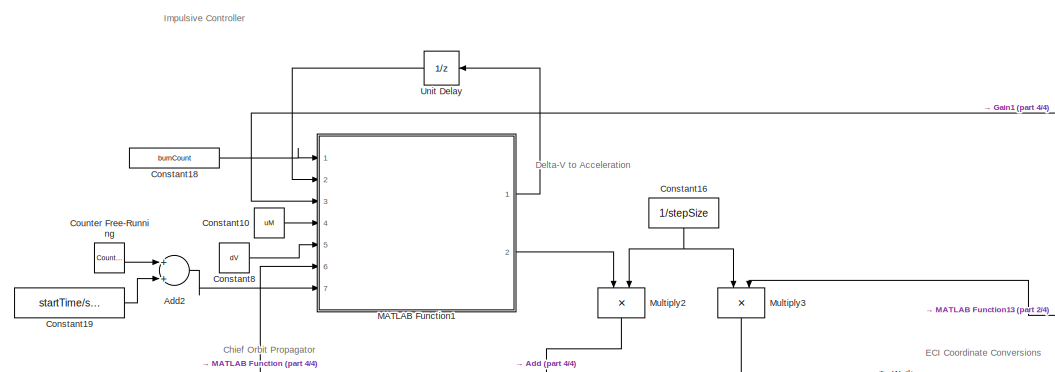
[diagram: root canvas - part 1/4, top left region]
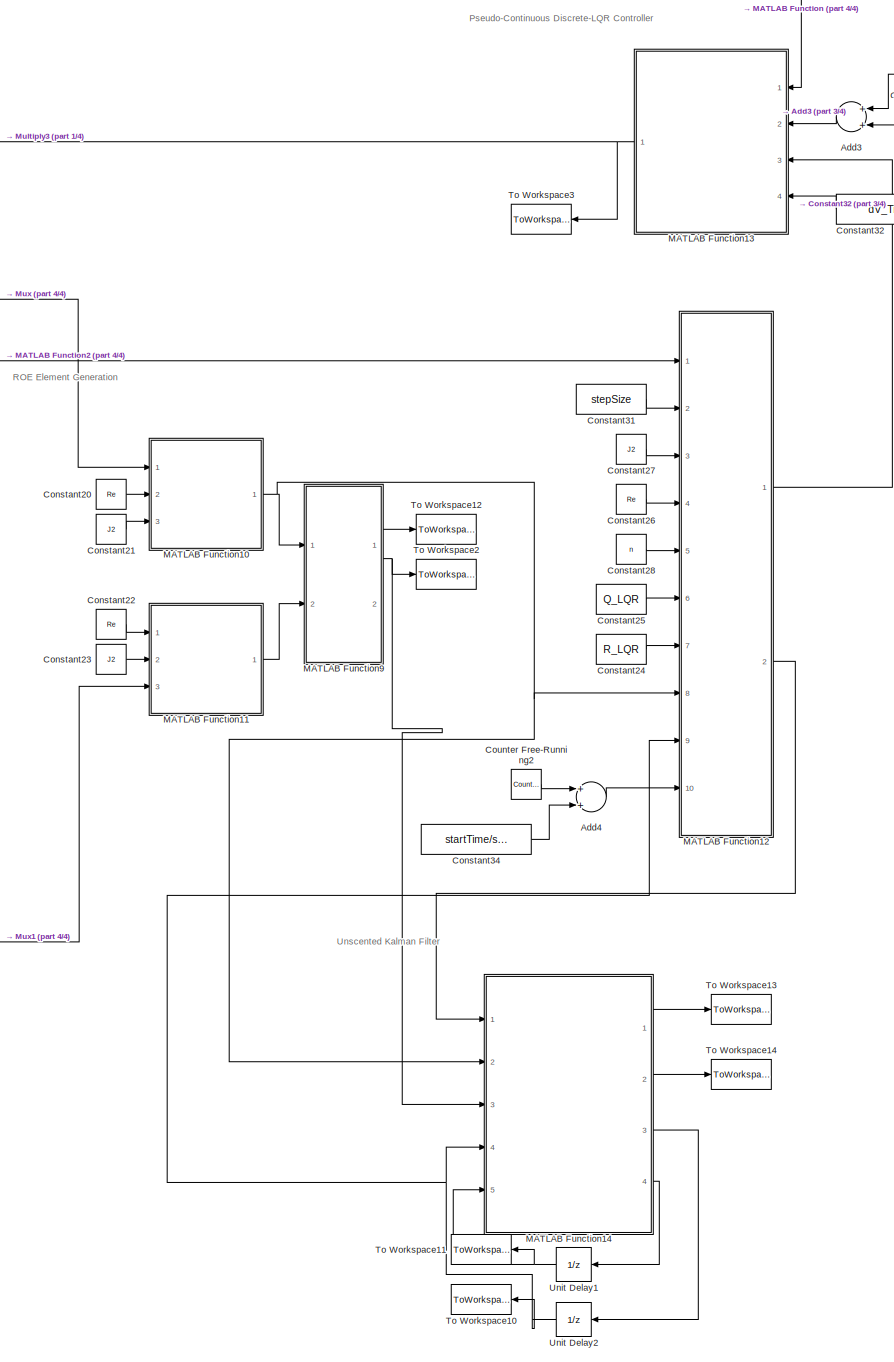
[diagram: root canvas - part 2/4, right side, full height]
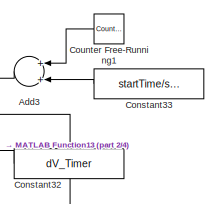
[diagram: root canvas - part 3/4, top right region]
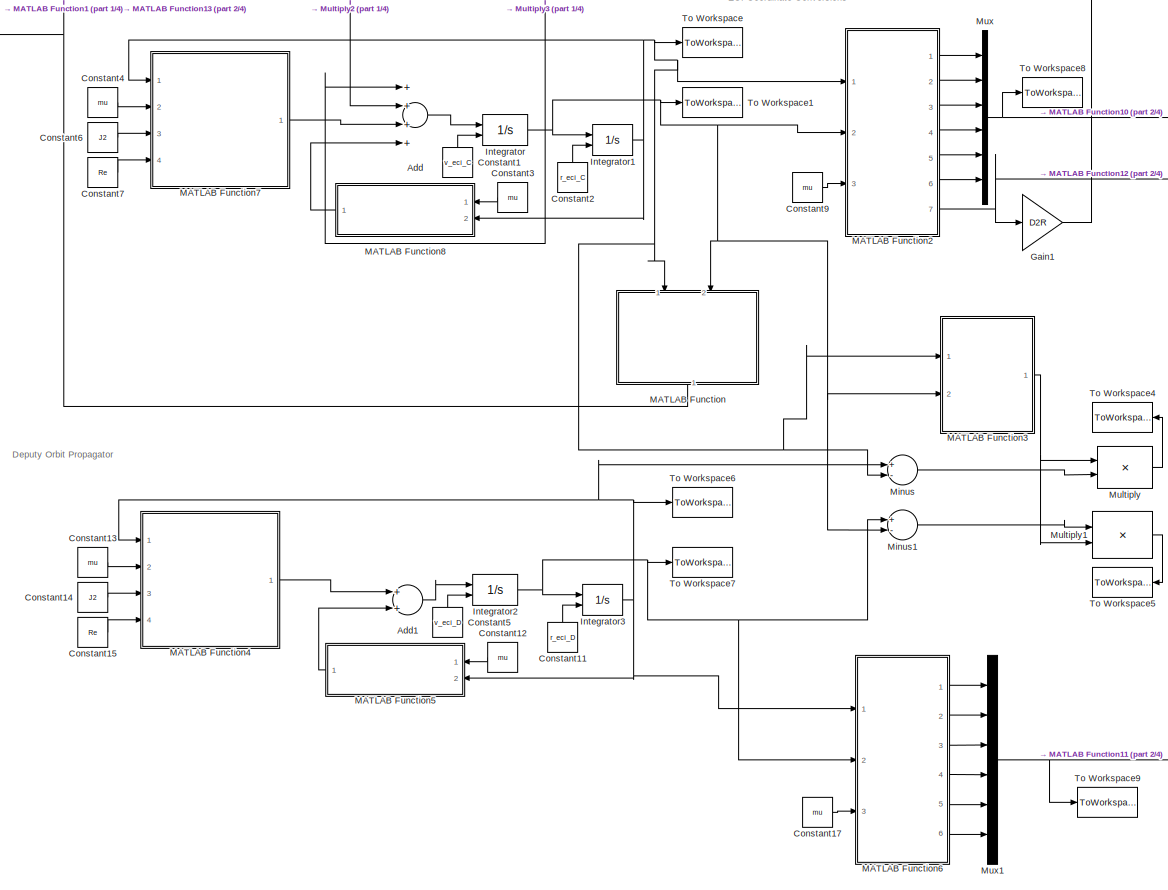
[diagram: root canvas - part 4/4, central region]
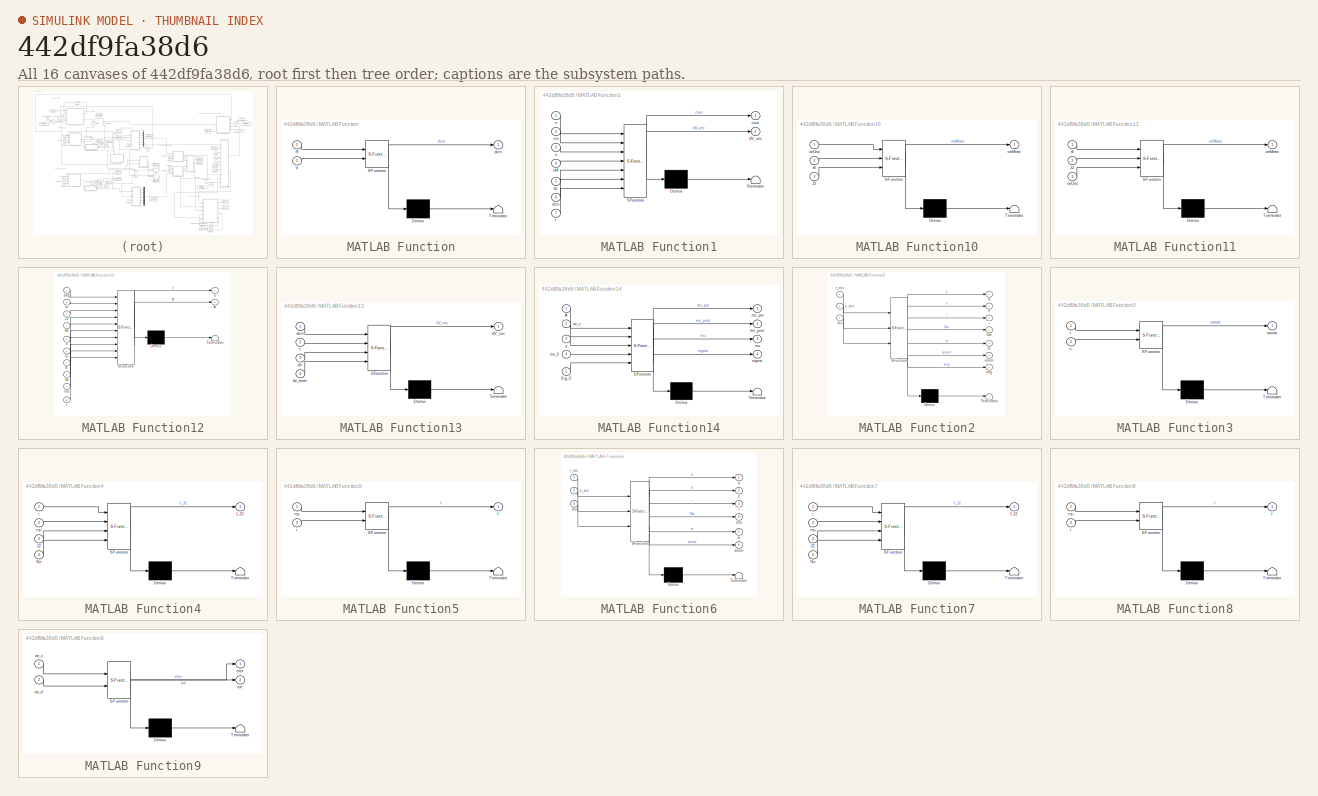
[diagram: thumbnail index - all 16 canvases of the model, root first then tree order]
MODEL slx_442df9fa38d6
KIND model
CONFIG AbsTol = auto
CONFIG EnableMultiTasking = off
CONFIG FixedStep = stepSize
CONFIG MaxStep = auto
CONFIG MinStep = auto
CONFIG RelTol = 1e-3
CONFIG SampleTimeConstraint = Unconstrained
CONFIG Solver = FixedStepAuto
CONFIG SolverName = FixedStepAuto
CONFIG StartTime = startTime
CONFIG StopTime = stopTime
BLOCK [Sum] Add
  InputSameDT = off
  Inputs = ++++
  OutDataTypeStr = Inherit: Inherit via internal rule
  Ports = [4, 1]
  SaturateOnIntegerOverflow = off
BLOCK [Sum] Add1
  InputSameDT = off
  OutDataTypeStr = Inherit: Inherit via internal rule
  Ports = [2, 1]
  SaturateOnIntegerOverflow = off
BLOCK [Sum] Add2
  InputSameDT = off
  OutDataTypeStr = Inherit: Inherit via internal rule
  Ports = [2, 1]
  SaturateOnIntegerOverflow = off
BLOCK [Sum] Add3
  InputSameDT = off
  OutDataTypeStr = Inherit: Inherit via internal rule
  Ports = [2, 1]
  SaturateOnIntegerOverflow = off
BLOCK [Sum] Add4
  InputSameDT = off
  OutDataTypeStr = Inherit: Inherit via internal rule
  Ports = [2, 1]
  SaturateOnIntegerOverflow = off
BLOCK [Constant] Constant1
  Value = v_eci_C
BLOCK [Constant] Constant10
  Value = uM
BLOCK [Constant] Constant11
  Value = r_eci_D
BLOCK [Constant] Constant12
  Value = mu
BLOCK [Constant] Constant13
  Value = mu
BLOCK [Constant] Constant14
  Value = J2
BLOCK [Constant] Constant15
  Value = Re
BLOCK [Constant] Constant16
  Value = 1/stepSize
BLOCK [Constant] Constant17
  Value = mu
BLOCK [Constant] Constant18
  Value = burnCount
BLOCK [Constant] Constant19
  Value = startTime/stepSize
BLOCK [Constant] Constant2
  Value = r_eci_C
BLOCK [Constant] Constant20
  Value = Re
BLOCK [Constant] Constant21
  Value = J2
BLOCK [Constant] Constant22
  Value = Re
BLOCK [Constant] Constant23
  Value = J2
BLOCK [Constant] Constant24
  Value = R_LQR
BLOCK [Constant] Constant25
  Value = Q_LQR
BLOCK [Constant] Constant26
  Value = Re
BLOCK [Constant] Constant27
  Value = J2
BLOCK [Constant] Constant28
  Value = n
BLOCK [Constant] Constant3
  Value = mu
BLOCK [Constant] Constant31
  Value = stepSize
BLOCK [Constant] Constant32
  Value = dV_Timer
BLOCK [Constant] Constant33
  Value = startTime/stepSize
BLOCK [Constant] Constant34
  Value = startTime/stepSize
BLOCK [Constant] Constant4
  Value = mu
BLOCK [Constant] Constant5
  Value = v_eci_D
BLOCK [Constant] Constant6
  Value = J2
BLOCK [Constant] Constant7
  Value = Re
BLOCK [Constant] Constant8
  Value = dV
BLOCK [Constant] Constant9
  Value = mu
BLOCK [Reference] Counter Free-Running  REF=simulink/Sources/Counter
Free-Running
  Ports = [0, 1]
  SourceBlock = simulink/Sources/Counter\nFree-Running
  SourceProductBaseCode = SL
  SourceProductName = Simulink
  SourceType = Counter Free-Running
BLOCK [Reference] Counter Free-Running1  REF=simulink/Sources/Counter
Free-Running
  Ports = [0, 1]
  SourceBlock = simulink/Sources/Counter\nFree-Running
  SourceProductBaseCode = SL
  SourceProductName = Simulink
  SourceType = Counter Free-Running
BLOCK [Reference] Counter Free-Running2  REF=simulink/Sources/Counter
Free-Running
  Ports = [0, 1]
  SourceBlock = simulink/Sources/Counter\nFree-Running
  SourceProductBaseCode = SL
  SourceProductName = Simulink
  SourceType = Counter Free-Running
BLOCK [Gain] Gain1
  Gain = D2R
  OutDataTypeStr = Inherit: Inherit via internal rule
  ParamDataTypeStr = Inherit: Inherit via internal rule
  SaturateOnIntegerOverflow = off
BLOCK [Integrator] Integrator
  InitialConditionSource = external
  Ports = [2, 1]
BLOCK [Integrator] Integrator1
  InitialConditionSource = external
  Ports = [2, 1]
BLOCK [Integrator] Integrator2
  InitialConditionSource = external
  Ports = [2, 1]
BLOCK [Integrator] Integrator3
  InitialConditionSource = external
  Ports = [2, 1]
BLOCK [SubSystem] MATLAB Function
  ErrorFcn = Stateflow.Translate.translate
  PermitHierarchicalResolution = ExplicitOnly
  Ports = [2, 1]
  RequestExecContextInheritance = off
  SFBlockType = MATLAB Function
  TreatAsAtomicUnit = on
BLOCK [Demux] MATLAB Function/ Demux 
  Outputs = 1
  Ports = [1, 1]
BLOCK [S-Function] MATLAB Function/ SFunction 
  EnableBusSupport = on
  FunctionName = sf_sfun
  PortCounts = [2 2]
  Ports = [2, 2]
  SFcnIsStateOwnerBlock = off
  SFunctionDeploymentMode = off
  Tag = Stateflow S-Function FINAL_MODEL 3
BLOCK [Terminator] MATLAB Function/ Terminator 
BLOCK [Inport] MATLAB Function/R
  IconDisplay = Port number
BLOCK [Inport] MATLAB Function/V
  IconDisplay = Port number
  Port = 2
BLOCK [Outport] MATLAB Function/dcm
  IconDisplay = Port number
BLOCK [SubSystem] MATLAB Function1
  ErrorFcn = Stateflow.Translate.translate
  PermitHierarchicalResolution = ExplicitOnly
  Ports = [7, 2]
  RequestExecContextInheritance = off
  SFBlockType = MATLAB Function
  TreatAsAtomicUnit = on
BLOCK [Demux] MATLAB Function1/ Demux 
  Outputs = 1
  Ports = [1, 1]
BLOCK [S-Function] MATLAB Function1/ SFunction 
  EnableBusSupport = on
  FunctionName = sf_sfun
  PortCounts = [7 3]
  Ports = [7, 3]
  SFcnIsStateOwnerBlock = off
  SFunctionDeploymentMode = off
  Tag = Stateflow S-Function FINAL_MODEL 1
BLOCK [Terminator] MATLAB Function1/ Terminator 
BLOCK [Inport] MATLAB Function1/cin
  IconDisplay = Port number
  Port = 2
BLOCK [Outport] MATLAB Function1/cout
  IconDisplay = Port number
BLOCK [Outport] MATLAB Function1/dV_vec
  IconDisplay = Port number
  Port = 2
BLOCK [Inport] MATLAB Function1/dcm
  IconDisplay = Port number
  Port = 6
BLOCK [Inport] MATLAB Function1/dv
  IconDisplay = Port number
  Port = 5
BLOCK [Inport] MATLAB Function1/n
  IconDisplay = Port number
BLOCK [Inport] MATLAB Function1/t
  IconDisplay = Port number
  Port = 7
BLOCK [Inport] MATLAB Function1/u
  IconDisplay = Port number
  Port = 3
BLOCK [Inport] MATLAB Function1/uM
  IconDisplay = Port number
  Port = 4
BLOCK [SubSystem] MATLAB Function10
  ErrorFcn = Stateflow.Translate.translate
  PermitHierarchicalResolution = ExplicitOnly
  Ports = [3, 1]
  RequestExecContextInheritance = off
  SFBlockType = MATLAB Function
  TreatAsAtomicUnit = on
BLOCK [Demux] MATLAB Function10/ Demux 
  Outputs = 1
  Ports = [1, 1]
BLOCK [S-Function] MATLAB Function10/ SFunction 
  EnableBusSupport = on
  FunctionName = sf_sfun
  PortCounts = [3 2]
  Ports = [3, 2]
  SFcnIsStateOwnerBlock = off
  SFunctionDeploymentMode = off
  Tag = Stateflow S-Function FINAL_MODEL 11
BLOCK [Terminator] MATLAB Function10/ Terminator 
BLOCK [Inport] MATLAB Function10/J2
  IconDisplay = Port number
  Port = 3
BLOCK [Outport] MATLAB Function10/oeMean
  IconDisplay = Port number
BLOCK [Inport] MATLAB Function10/oeOsc
  IconDisplay = Port number
BLOCK [Inport] MATLAB Function10/rE
  IconDisplay = Port number
  Port = 2
BLOCK [SubSystem] MATLAB Function11
  ErrorFcn = Stateflow.Translate.translate
  PermitHierarchicalResolution = ExplicitOnly
  Ports = [3, 1]
  RequestExecContextInheritance = off
  SFBlockType = MATLAB Function
  TreatAsAtomicUnit = on
BLOCK [Demux] MATLAB Function11/ Demux 
  Outputs = 1
  Ports = [1, 1]
BLOCK [S-Function] MATLAB Function11/ SFunction 
  EnableBusSupport = on
  FunctionName = sf_sfun
  PortCounts = [3 2]
  Ports = [3, 2]
  SFcnIsStateOwnerBlock = off
  SFunctionDeploymentMode = off
  Tag = Stateflow S-Function FINAL_MODEL 12
BLOCK [Terminator] MATLAB Function11/ Terminator 
BLOCK [Inport] MATLAB Function11/J2
  IconDisplay = Port number
  Port = 2
BLOCK [Outport] MATLAB Function11/oeMean
  IconDisplay = Port number
BLOCK [Inport] MATLAB Function11/oeOsc
  IconDisplay = Port number
  Port = 3
BLOCK [Inport] MATLAB Function11/rE
  IconDisplay = Port number
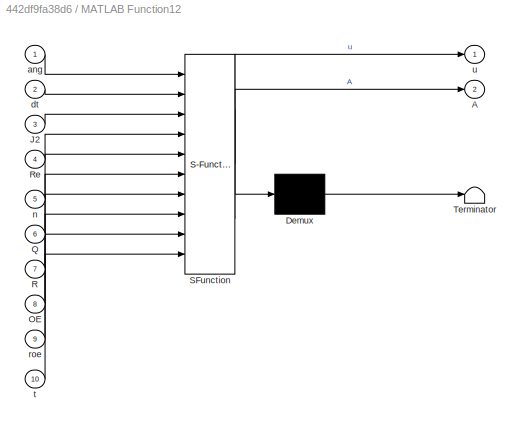
BLOCK [SubSystem] MATLAB Function12
  ErrorFcn = Stateflow.Translate.translate
  PermitHierarchicalResolution = ExplicitOnly
  Ports = [10, 2]
  RequestExecContextInheritance = off
  SFBlockType = MATLAB Function
  TreatAsAtomicUnit = on
BLOCK [Demux] MATLAB Function12/ Demux 
  Outputs = 1
  Ports = [1, 1]
BLOCK [S-Function] MATLAB Function12/ SFunction 
  EnableBusSupport = on
  FunctionName = sf_sfun
  PortCounts = [10 3]
  Ports = [10, 3]
  SFcnIsStateOwnerBlock = off
  SFunctionDeploymentMode = off
  Tag = Stateflow S-Function FINAL_MODEL 13
BLOCK [Terminator] MATLAB Function12/ Terminator 
BLOCK [Outport] MATLAB Function12/A
  IconDisplay = Port number
  Port = 2
BLOCK [Inport] MATLAB Function12/J2
  IconDisplay = Port number
  Port = 3
BLOCK [Inport] MATLAB Function12/OE
  IconDisplay = Port number
  Port = 8
BLOCK [Inport] MATLAB Function12/Q
  IconDisplay = Port number
  Port = 6
BLOCK [Inport] MATLAB Function12/R
  IconDisplay = Port number
  Port = 7
BLOCK [Inport] MATLAB Function12/Re
  IconDisplay = Port number
  Port = 4
BLOCK [Inport] MATLAB Function12/ang
  IconDisplay = Port number
BLOCK [Inport] MATLAB Function12/dt
  IconDisplay = Port number
  Port = 2
BLOCK [Inport] MATLAB Function12/n
  IconDisplay = Port number
  Port = 5
BLOCK [Inport] MATLAB Function12/roe
  IconDisplay = Port number
  Port = 9
BLOCK [Inport] MATLAB Function12/t
  IconDisplay = Port number
  Port = 10
BLOCK [Outport] MATLAB Function12/u
  IconDisplay = Port number
BLOCK [SubSystem] MATLAB Function13
  ErrorFcn = Stateflow.Translate.translate
  PermitHierarchicalResolution = ExplicitOnly
  Ports = [4, 1]
  RequestExecContextInheritance = off
  SFBlockType = MATLAB Function
  TreatAsAtomicUnit = on
BLOCK [Demux] MATLAB Function13/ Demux 
  Outputs = 1
  Ports = [1, 1]
BLOCK [S-Function] MATLAB Function13/ SFunction 
  EnableBusSupport = on
  FunctionName = sf_sfun
  PortCounts = [4 2]
  Ports = [4, 2]
  SFcnIsStateOwnerBlock = off
  SFunctionDeploymentMode = off
  Tag = Stateflow S-Function FINAL_MODEL 14
BLOCK [Terminator] MATLAB Function13/ Terminator 
BLOCK [Outport] MATLAB Function13/dV_vec
  IconDisplay = Port number
BLOCK [Inport] MATLAB Function13/dcm
  IconDisplay = Port number
BLOCK [Inport] MATLAB Function13/dv
  IconDisplay = Port number
  Port = 3
BLOCK [Inport] MATLAB Function13/dv_timer
  IconDisplay = Port number
  Port = 4
BLOCK [Inport] MATLAB Function13/t
  IconDisplay = Port number
  Port = 2
BLOCK [SubSystem] MATLAB Function14
  ErrorFcn = Stateflow.Translate.translate
  PermitHierarchicalResolution = ExplicitOnly
  Ports = [5, 4]
  RequestExecContextInheritance = off
  SFBlockType = MATLAB Function
  TreatAsAtomicUnit = on
BLOCK [Demux] MATLAB Function14/ Demux 
  Outputs = 1
  Ports = [1, 1]
BLOCK [S-Function] MATLAB Function14/ SFunction 
  EnableBusSupport = on
  FunctionName = sf_sfun
  PortCounts = [5 5]
  Ports = [5, 5]
  SFcnIsStateOwnerBlock = off
  SFunctionDeploymentMode = off
  Tag = Stateflow S-Function FINAL_MODEL 15
BLOCK [Terminator] MATLAB Function14/ Terminator 
BLOCK [Inport] MATLAB Function14/A
  IconDisplay = Port number
BLOCK [Inport] MATLAB Function14/Sig_0
  IconDisplay = Port number
  Port = 5
BLOCK [Outport] MATLAB Function14/mu
  IconDisplay = Port number
  Port = 3
BLOCK [Inport] MATLAB Function14/mu_0
  IconDisplay = Port number
  Port = 4
BLOCK [Inport] MATLAB Function14/oe_c
  IconDisplay = Port number
  Port = 2
BLOCK [Outport] MATLAB Function14/res_post
  IconDisplay = Port number
  Port = 2
BLOCK [Outport] MATLAB Function14/res_pre
  IconDisplay = Port number
BLOCK [Outport] MATLAB Function14/sigma
  IconDisplay = Port number
  Port = 4
BLOCK [Inport] MATLAB Function14/y
  IconDisplay = Port number
  Port = 3
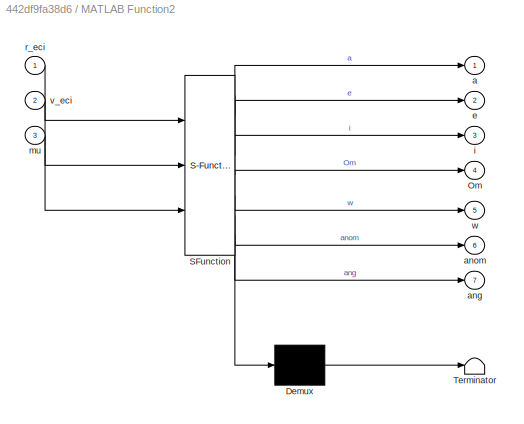
BLOCK [SubSystem] MATLAB Function2
  ErrorFcn = Stateflow.Translate.translate
  PermitHierarchicalResolution = ExplicitOnly
  Ports = [3, 7]
  RequestExecContextInheritance = off
  SFBlockType = MATLAB Function
  TreatAsAtomicUnit = on
BLOCK [Demux] MATLAB Function2/ Demux 
  Outputs = 1
  Ports = [1, 1]
BLOCK [S-Function] MATLAB Function2/ SFunction 
  EnableBusSupport = on
  FunctionName = sf_sfun
  PortCounts = [3 8]
  Ports = [3, 8]
  SFcnIsStateOwnerBlock = off
  SFunctionDeploymentMode = off
  Tag = Stateflow S-Function FINAL_MODEL 2
BLOCK [Terminator] MATLAB Function2/ Terminator 
BLOCK [Outport] MATLAB Function2/Om
  IconDisplay = Port number
  Port = 4
BLOCK [Outport] MATLAB Function2/a
  IconDisplay = Port number
BLOCK [Outport] MATLAB Function2/ang
  IconDisplay = Port number
  Port = 7
BLOCK [Outport] MATLAB Function2/anom
  IconDisplay = Port number
  Port = 6
BLOCK [Outport] MATLAB Function2/e
  IconDisplay = Port number
  Port = 2
BLOCK [Outport] MATLAB Function2/i
  IconDisplay = Port number
  Port = 3
BLOCK [Inport] MATLAB Function2/mu
  IconDisplay = Port number
  Port = 3
BLOCK [Inport] MATLAB Function2/r_eci
  IconDisplay = Port number
BLOCK [Inport] MATLAB Function2/v_eci
  IconDisplay = Port number
  Port = 2
BLOCK [Outport] MATLAB Function2/w
  IconDisplay = Port number
  Port = 5
BLOCK [SubSystem] MATLAB Function3
  ErrorFcn = Stateflow.Translate.translate
  PermitHierarchicalResolution = ExplicitOnly
  Ports = [2, 1]
  RequestExecContextInheritance = off
  SFBlockType = MATLAB Function
  TreatAsAtomicUnit = on
BLOCK [Demux] MATLAB Function3/ Demux 
  Outputs = 1
  Ports = [1, 1]
BLOCK [S-Function] MATLAB Function3/ SFunction 
  EnableBusSupport = on
  FunctionName = sf_sfun
  PortCounts = [2 2]
  Ports = [2, 2]
  SFcnIsStateOwnerBlock = off
  SFunctionDeploymentMode = off
  Tag = Stateflow S-Function FINAL_MODEL 6
BLOCK [Terminator] MATLAB Function3/ Terminator 
BLOCK [Inport] MATLAB Function3/r
  IconDisplay = Port number
BLOCK [Outport] MATLAB Function3/rotmat
  IconDisplay = Port number
BLOCK [Inport] MATLAB Function3/v
  IconDisplay = Port number
  Port = 2
BLOCK [SubSystem] MATLAB Function4
  ErrorFcn = Stateflow.Translate.translate
  PermitHierarchicalResolution = ExplicitOnly
  Ports = [4, 1]
  RequestExecContextInheritance = off
  SFBlockType = MATLAB Function
  TreatAsAtomicUnit = on
BLOCK [Demux] MATLAB Function4/ Demux 
  Outputs = 1
  Ports = [1, 1]
BLOCK [S-Function] MATLAB Function4/ SFunction 
  EnableBusSupport = on
  FunctionName = sf_sfun
  PortCounts = [4 2]
  Ports = [4, 2]
  SFcnIsStateOwnerBlock = off
  SFunctionDeploymentMode = off
  Tag = Stateflow S-Function FINAL_MODEL 7
BLOCK [Terminator] MATLAB Function4/ Terminator 
BLOCK [Inport] MATLAB Function4/J2
  IconDisplay = Port number
  Port = 3
BLOCK [Inport] MATLAB Function4/Re
  IconDisplay = Port number
  Port = 4
BLOCK [Outport] MATLAB Function4/f_J2
  IconDisplay = Port number
BLOCK [Inport] MATLAB Function4/mu
  IconDisplay = Port number
  Port = 2
BLOCK [Inport] MATLAB Function4/r
  IconDisplay = Port number
BLOCK [SubSystem] MATLAB Function5
  ErrorFcn = Stateflow.Translate.translate
  PermitHierarchicalResolution = ExplicitOnly
  Ports = [2, 1]
  RequestExecContextInheritance = off
  SFBlockType = MATLAB Function
  TreatAsAtomicUnit = on
BLOCK [Demux] MATLAB Function5/ Demux 
  Outputs = 1
  Ports = [1, 1]
BLOCK [S-Function] MATLAB Function5/ SFunction 
  EnableBusSupport = on
  FunctionName = sf_sfun
  PortCounts = [2 2]
  Ports = [2, 2]
  SFcnIsStateOwnerBlock = off
  SFunctionDeploymentMode = off
  Tag = Stateflow S-Function FINAL_MODEL 8
BLOCK [Terminator] MATLAB Function5/ Terminator 
BLOCK [Outport] MATLAB Function5/f
  IconDisplay = Port number
BLOCK [Inport] MATLAB Function5/mu
  IconDisplay = Port number
BLOCK [Inport] MATLAB Function5/r
  IconDisplay = Port number
  Port = 2
BLOCK [SubSystem] MATLAB Function6
  ErrorFcn = Stateflow.Translate.translate
  PermitHierarchicalResolution = ExplicitOnly
  Ports = [3, 6]
  RequestExecContextInheritance = off
  SFBlockType = MATLAB Function
  TreatAsAtomicUnit = on
BLOCK [Demux] MATLAB Function6/ Demux 
  Outputs = 1
  Ports = [1, 1]
BLOCK [S-Function] MATLAB Function6/ SFunction 
  EnableBusSupport = on
  FunctionName = sf_sfun
  PortCounts = [3 7]
  Ports = [3, 7]
  SFcnIsStateOwnerBlock = off
  SFunctionDeploymentMode = off
  Tag = Stateflow S-Function FINAL_MODEL 9
BLOCK [Terminator] MATLAB Function6/ Terminator 
BLOCK [Outport] MATLAB Function6/Om
  IconDisplay = Port number
  Port = 4
BLOCK [Outport] MATLAB Function6/a
  IconDisplay = Port number
BLOCK [Outport] MATLAB Function6/anom
  IconDisplay = Port number
  Port = 6
BLOCK [Outport] MATLAB Function6/e
  IconDisplay = Port number
  Port = 2
BLOCK [Outport] MATLAB Function6/i
  IconDisplay = Port number
  Port = 3
BLOCK [Inport] MATLAB Function6/mu
  IconDisplay = Port number
  Port = 3
BLOCK [Inport] MATLAB Function6/r_eci
  IconDisplay = Port number
BLOCK [Inport] MATLAB Function6/v_eci
  IconDisplay = Port number
  Port = 2
BLOCK [Outport] MATLAB Function6/w
  IconDisplay = Port number
  Port = 5
BLOCK [SubSystem] MATLAB Function7
  ErrorFcn = Stateflow.Translate.translate
  PermitHierarchicalResolution = ExplicitOnly
  Ports = [4, 1]
  RequestExecContextInheritance = off
  SFBlockType = MATLAB Function
  TreatAsAtomicUnit = on
BLOCK [Demux] MATLAB Function7/ Demux 
  Outputs = 1
  Ports = [1, 1]
BLOCK [S-Function] MATLAB Function7/ SFunction 
  EnableBusSupport = on
  FunctionName = sf_sfun
  PortCounts = [4 2]
  Ports = [4, 2]
  SFcnIsStateOwnerBlock = off
  SFunctionDeploymentMode = off
  Tag = Stateflow S-Function FINAL_MODEL 4
BLOCK [Terminator] MATLAB Function7/ Terminator 
BLOCK [Inport] MATLAB Function7/J2
  IconDisplay = Port number
  Port = 3
BLOCK [Inport] MATLAB Function7/Re
  IconDisplay = Port number
  Port = 4
BLOCK [Outport] MATLAB Function7/f_J2
  IconDisplay = Port number
BLOCK [Inport] MATLAB Function7/mu
  IconDisplay = Port number
  Port = 2
BLOCK [Inport] MATLAB Function7/r
  IconDisplay = Port number
BLOCK [SubSystem] MATLAB Function8
  ErrorFcn = Stateflow.Translate.translate
  PermitHierarchicalResolution = ExplicitOnly
  Ports = [2, 1]
  RequestExecContextInheritance = off
  SFBlockType = MATLAB Function
  TreatAsAtomicUnit = on
BLOCK [Demux] MATLAB Function8/ Demux 
  Outputs = 1
  Ports = [1, 1]
BLOCK [S-Function] MATLAB Function8/ SFunction 
  EnableBusSupport = on
  FunctionName = sf_sfun
  PortCounts = [2 2]
  Ports = [2, 2]
  SFcnIsStateOwnerBlock = off
  SFunctionDeploymentMode = off
  Tag = Stateflow S-Function FINAL_MODEL 5
BLOCK [Terminator] MATLAB Function8/ Terminator 
BLOCK [Outport] MATLAB Function8/f
  IconDisplay = Port number
BLOCK [Inport] MATLAB Function8/mu
  IconDisplay = Port number
BLOCK [Inport] MATLAB Function8/r
  IconDisplay = Port number
  Port = 2
BLOCK [SubSystem] MATLAB Function9
  ErrorFcn = Stateflow.Translate.translate
  PermitHierarchicalResolution = ExplicitOnly
  Ports = [2, 2]
  RequestExecContextInheritance = off
  SFBlockType = MATLAB Function
  TreatAsAtomicUnit = on
BLOCK [Demux] MATLAB Function9/ Demux 
  Outputs = 1
  Ports = [1, 1]
BLOCK [S-Function] MATLAB Function9/ SFunction 
  EnableBusSupport = on
  FunctionName = sf_sfun
  PortCounts = [2 3]
  Ports = [2, 3]
  SFcnIsStateOwnerBlock = off
  SFunctionDeploymentMode = off
  Tag = Stateflow S-Function FINAL_MODEL 10
BLOCK [Terminator] MATLAB Function9/ Terminator 
BLOCK [Outport] MATLAB Function9/error
  IconDisplay = Port number
BLOCK [Inport] MATLAB Function9/oe_c
  IconDisplay = Port number
BLOCK [Inport] MATLAB Function9/oe_d
  IconDisplay = Port number
  Port = 2
BLOCK [Outport] MATLAB Function9/roe
  IconDisplay = Port number
  Port = 2
BLOCK [Sum] Minus
  InputSameDT = off
  Inputs = +-
  OutDataTypeStr = Inherit: Inherit via internal rule
  Ports = [2, 1]
  SaturateOnIntegerOverflow = off
BLOCK [Sum] Minus1
  InputSameDT = off
  Inputs = +-
  OutDataTypeStr = Inherit: Inherit via internal rule
  Ports = [2, 1]
  SaturateOnIntegerOverflow = off
BLOCK [Product] Multiply
  InputSameDT = off
  Multiplication = Matrix(*)
  OutDataTypeStr = Inherit: Inherit via internal rule
  Ports = [2, 1]
  RndMeth = Floor
  SaturateOnIntegerOverflow = off
BLOCK [Product] Multiply1
  InputSameDT = off
  Multiplication = Matrix(*)
  OutDataTypeStr = Inherit: Inherit via internal rule
  Ports = [2, 1]
  RndMeth = Floor
  SaturateOnIntegerOverflow = off
BLOCK [Product] Multiply2
  InputSameDT = off
  OutDataTypeStr = Inherit: Inherit via internal rule
  Ports = [2, 1]
  RndMeth = Floor
  SaturateOnIntegerOverflow = off
BLOCK [Product] Multiply3
  InputSameDT = off
  OutDataTypeStr = Inherit: Inherit via internal rule
  Ports = [2, 1]
  RndMeth = Floor
  SaturateOnIntegerOverflow = off
BLOCK [Mux] Mux
  DisplayOption = bar
  Inputs = 6
  Ports = [6, 1]
BLOCK [Mux] Mux1
  DisplayOption = bar
  Inputs = 6
  Ports = [6, 1]
BLOCK [ToWorkspace] To Workspace
  FixptAsFi = on
  MaxDataPoints = inf
  Ports = [1]
  SampleTime = -1
  Save2DSignal = 2-D array (concatenate along first dimension)
  VariableName = r
BLOCK [ToWorkspace] To Workspace1
  FixptAsFi = on
  MaxDataPoints = inf
  Ports = [1]
  SampleTime = -1
  Save2DSignal = 2-D array (concatenate along first dimension)
  VariableName = v
BLOCK [ToWorkspace] To Workspace10
  FixptAsFi = on
  MaxDataPoints = inf
  Ports = [1]
  SampleTime = -1
  Save2DSignal = 2-D array (concatenate along first dimension)
  VariableName = ukf_out
BLOCK [ToWorkspace] To Workspace11
  FixptAsFi = on
  MaxDataPoints = inf
  Ports = [1]
  SampleTime = -1
  Save2DSignal = 3-D array (concatenate along third dimension)
  VariableName = sig_out
BLOCK [ToWorkspace] To Workspace12
  FixptAsFi = on
  MaxDataPoints = inf
  Ports = [1]
  SampleTime = -1
  Save2DSignal = 2-D array (concatenate along first dimension)
  VariableName = error
BLOCK [ToWorkspace] To Workspace13
  FixptAsFi = on
  MaxDataPoints = inf
  Ports = [1]
  SampleTime = -1
  Save2DSignal = 2-D array (concatenate along first dimension)
  VariableName = res_pre
BLOCK [ToWorkspace] To Workspace14
  FixptAsFi = on
  MaxDataPoints = inf
  Ports = [1]
  SampleTime = -1
  Save2DSignal = 2-D array (concatenate along first dimension)
  VariableName = res_post
BLOCK [ToWorkspace] To Workspace2
  FixptAsFi = on
  MaxDataPoints = inf
  Ports = [1]
  SampleTime = -1
  Save2DSignal = 2-D array (concatenate along first dimension)
  VariableName = roe_out
BLOCK [ToWorkspace] To Workspace3
  FixptAsFi = on
  MaxDataPoints = inf
  Ports = [1]
  SampleTime = -1
  Save2DSignal = 2-D array (concatenate along first dimension)
  VariableName = dV_LQR
BLOCK [ToWorkspace] To Workspace4
  FixptAsFi = on
  MaxDataPoints = inf
  Ports = [1]
  SampleTime = -1
  Save2DSignal = 2-D array (concatenate along first dimension)
  VariableName = rRTN
BLOCK [ToWorkspace] To Workspace5
  FixptAsFi = on
  MaxDataPoints = inf
  Ports = [1]
  SampleTime = -1
  Save2DSignal = 2-D array (concatenate along first dimension)
  VariableName = vRTN
BLOCK [ToWorkspace] To Workspace6
  FixptAsFi = on
  MaxDataPoints = inf
  Ports = [1]
  SampleTime = -1
  Save2DSignal = 2-D array (concatenate along first dimension)
  VariableName = rd
BLOCK [ToWorkspace] To Workspace7
  FixptAsFi = on
  MaxDataPoints = inf
  Ports = [1]
  SampleTime = -1
  Save2DSignal = 2-D array (concatenate along first dimension)
  VariableName = vd
BLOCK [ToWorkspace] To Workspace8
  FixptAsFi = on
  MaxDataPoints = inf
  Ports = [1]
  SampleTime = -1
  Save2DSignal = 2-D array (concatenate along first dimension)
  VariableName = OE_C
BLOCK [ToWorkspace] To Workspace9
  FixptAsFi = on
  MaxDataPoints = inf
  Ports = [1]
  SampleTime = -1
  Save2DSignal = 2-D array (concatenate along first dimension)
  VariableName = OE_D
BLOCK [UnitDelay] Unit Delay
  InputProcessing = Columns as channels (frame based)
  SampleTime = -1
BLOCK [UnitDelay] Unit Delay1
  InitialCondition = sig0
  InputProcessing = Elements as channels (sample based)
  SampleTime = stepSize
BLOCK [UnitDelay] Unit Delay2
  InitialCondition = roe
  InputProcessing = Elements as channels (sample based)
  SampleTime = stepSize
ANNOTATION (root): Chief Orbit Propagator
ANNOTATION (root): Delta-V to Acceleration
ANNOTATION (root): Deputy Orbit Propagator
ANNOTATION (root): ECI Coordinate Conversions
ANNOTATION (root): Impulsive Controller
ANNOTATION (root): Pseudo-Continuous Discrete-LQR Controller
ANNOTATION (root): ROE Element Generation
ANNOTATION (root): Unscented Kalman Filter
LINE Add1:1 -> Integrator2:1
LINE Add2:1 -> MATLAB Function1:7
LINE Add3:1 -> MATLAB Function13:2
LINE Add4:1 -> MATLAB Function12:10
LINE Add:1 -> Integrator:1
LINE Constant10:1 -> MATLAB Function1:4
LINE Constant11:1 -> Integrator3:2
LINE Constant12:1 -> MATLAB Function5:1
LINE Constant13:1 -> MATLAB Function4:2
LINE Constant14:1 -> MATLAB Function4:3
LINE Constant15:1 -> MATLAB Function4:4
NET Constant16:1 -> Multiply2:2, Multiply3:1
LINE Constant17:1 -> MATLAB Function6:3
LINE Constant18:1 -> MATLAB Function1:1
LINE Constant19:1 -> Add2:2
LINE Constant1:1 -> Integrator:2
LINE Constant20:1 -> MATLAB Function10:2
LINE Constant21:1 -> MATLAB Function10:3
LINE Constant22:1 -> MATLAB Function11:1
LINE Constant23:1 -> MATLAB Function11:2
LINE Constant24:1 -> MATLAB Function12:7
LINE Constant25:1 -> MATLAB Function12:6
LINE Constant26:1 -> MATLAB Function12:4
LINE Constant27:1 -> MATLAB Function12:3
LINE Constant28:1 -> MATLAB Function12:5
LINE Constant2:1 -> Integrator1:2
LINE Constant31:1 -> MATLAB Function12:2
LINE Constant32:1 -> MATLAB Function13:4
LINE Constant33:1 -> Add3:2
LINE Constant34:1 -> Add4:2
LINE Constant3:1 -> MATLAB Function8:1
LINE Constant4:1 -> MATLAB Function7:2
LINE Constant5:1 -> Integrator2:2
LINE Constant6:1 -> MATLAB Function7:3
LINE Constant7:1 -> MATLAB Function7:4
LINE Constant8:1 -> MATLAB Function1:5
LINE Constant9:1 -> MATLAB Function2:3
LINE Counter Free-Running1:1 -> Add3:1
LINE Counter Free-Running2:1 -> Add4:1
LINE Counter Free-Running:1 -> Add2:1
LINE Gain1:1 -> MATLAB Function1:3
NET Integrator1:1 -> MATLAB Function2:1, MATLAB Function3:1, MATLAB Function7:1, MATLAB Function8:2, MATLAB Function:1, Minus:2, To Workspace:1
NET Integrator2:1 -> Integrator3:1, MATLAB Function6:2, Minus1:1, To Workspace7:1
NET Integrator3:1 -> MATLAB Function4:1, MATLAB Function5:2, MATLAB Function6:1, Minus:1, To Workspace6:1
NET Integrator:1 -> Integrator1:1, MATLAB Function2:2, MATLAB Function3:2, MATLAB Function:2, Minus1:2, To Workspace1:1
NET MATLAB Function10:1 -> MATLAB Function12:8, MATLAB Function14:2, MATLAB Function9:1
LINE MATLAB Function11:1 -> MATLAB Function9:2
LINE MATLAB Function12:1 -> MATLAB Function13:3
LINE MATLAB Function12:2 -> MATLAB Function14:1
NET MATLAB Function13:1 -> Multiply3:2, To Workspace3:1
LINE MATLAB Function14:1 -> To Workspace13:1
LINE MATLAB Function14:2 -> To Workspace14:1
LINE MATLAB Function14:3 -> Unit Delay2:1
LINE MATLAB Function14:4 -> Unit Delay1:1
LINE MATLAB Function1:1 -> Unit Delay:1
LINE MATLAB Function1:2 -> Multiply2:1
LINE MATLAB Function2:1 -> Mux:1
LINE MATLAB Function2:2 -> Mux:2
LINE MATLAB Function2:3 -> Mux:3
LINE MATLAB Function2:4 -> Mux:4
LINE MATLAB Function2:5 -> Mux:5
LINE MATLAB Function2:6 -> Mux:6
NET MATLAB Function2:7 -> Gain1:1, MATLAB Function12:1
NET MATLAB Function3:1 -> Multiply1:2, Multiply:1
LINE MATLAB Function4:1 -> Add1:1
LINE MATLAB Function5:1 -> Add1:2
LINE MATLAB Function6:1 -> Mux1:1
LINE MATLAB Function6:2 -> Mux1:2
LINE MATLAB Function6:3 -> Mux1:3
LINE MATLAB Function6:4 -> Mux1:4
LINE MATLAB Function6:5 -> Mux1:5
LINE MATLAB Function6:6 -> Mux1:6
LINE MATLAB Function7:1 -> Add:3
LINE MATLAB Function8:1 -> Add:4
LINE MATLAB Function9:1 -> To Workspace12:1
NET MATLAB Function9:2 -> MATLAB Function14:3, To Workspace2:1
NET MATLAB Function:1 -> MATLAB Function13:1, MATLAB Function1:6
LINE Minus1:1 -> Multiply1:1
LINE Minus:1 -> Multiply:2
LINE Multiply1:1 -> To Workspace5:1
LINE Multiply2:1 -> Add:2
LINE Multiply3:1 -> Add:1
LINE Multiply:1 -> To Workspace4:1
NET Mux1:1 -> MATLAB Function11:3, To Workspace9:1
NET Mux:1 -> MATLAB Function10:1, To Workspace8:1
NET Unit Delay1:1 -> MATLAB Function14:5, To Workspace11:1
NET Unit Delay2:1 -> MATLAB Function12:9, MATLAB Function14:4, To Workspace10:1
LINE Unit Delay:1 -> MATLAB Function1:2
note: NET lines group one-source signal fan-out (src -> all destinations, sorted); 1:1 wires keep LINE
CHART MATLAB Function1 states=1 transitions=1
  STATE_LABEL 'eML_blk_kernel()'
  STATE_LABEL "SCRIPT:\nfunction [cout,dV_vec] = impulse_man(n,cin,u,uM,dv,dcm,t)\n\ni = cin+1;\n\nif double(t) == 116 && n == 1\n    dV_vec = dcm*[dv(1,1);dv(2,1);dv(3,1)];\n%     fprintf('Completed Burn No.%0.0f at t = %0.2f\\n',i,double(t));\n    cout = cin+1;\nelseif n == 2 && double(t) == 3519\n    dV_vec = dcm*[dv(1,1);dv(2,1);dv(3,1)];\n%     fprintf('Completed Burn No.%0.0f at t = %0.2f\\n',i,double(t));\n    cout = c...<+735ch>"
CHART MATLAB Function2 states=1 transitions=1
  STATE_LABEL 'eML_blk_kernel()'
  STATE_LABEL 'SCRIPT:\nfunction [a, e, i, Om, w, anom, ang] = ECI2OE(r_eci, v_eci, mu)\n% ECI2OE Converts r and v in the ECI frame to orbital elements\n%\n% Inputs:\n%   r_eci - 3x1 vector of radius in ECI frame [km]\n%   v_eci - 3x1 vector of velocity in ECI frame [km]\n%   mu    - gravitational parameter of central body [km^3/s^2]\n%\n% Outputs:\n%   p     - semi-lactus rectum of orbit [km]\n%   a     - semi-major axis ...<+2154ch>'
CHART MATLAB Function states=1 transitions=1
  STATE_LABEL 'eML_blk_kernel()'
  STATE_LABEL "SCRIPT:\nfunction dcm = RTN2ECI(R, V)\n% RTN2ECI Computes rotation matrices from RTN frame to inertial frame\n%\n% Inputs:\n%   R - 3xn inertial position vectors\n%   V - 3xn inertial velocity vectors\n%\n% Outputs:\n%   dcm - 3x3xn rotation matrices from inertial to RTN\n\n% Set up the input matrices as a (3 x n) series of column vectors\nif size(R, 2) == 3 && size(R, 1) ~= 3\n    R = R.';\nend\n\nif size(V, 2) ...<+652ch>"
CHART MATLAB Function7 states=1 transitions=1
  STATE_LABEL 'eML_blk_kernel()'
  STATE_LABEL 'SCRIPT:\nfunction f_J2 = J2_Accel(r,mu,J2,Re)\n\nf_J2 = mu*r/(norm(r)^3).*...\n    [3/2*J2*(Re/norm(r))^2*(5*(r(3)^2)/(norm(r)^2)-1);...\n    3/2*J2*(Re/norm(r))^2*(5*(r(3)^2)/(norm(r)^2)-1);...\n    3/2*J2*(Re/norm(r))^2*(5*(r(3)^2)/(norm(r)^2)-3)];'
CHART MATLAB Function8 states=1 transitions=1
  STATE_LABEL 'eML_blk_kernel()'
  STATE_LABEL 'SCRIPT:\nfunction f = FODE_NUM_PROP(mu,r)\n\nf = -mu*r/(norm(r)^3);'
CHART MATLAB Function3 states=1 transitions=1
  STATE_LABEL 'eML_blk_kernel()'
  STATE_LABEL 'SCRIPT:\nfunction rotmat = ECI2RTN( r,v)\n\nr=reshape(r,1,3);\nv=reshape(v,1,3);\nunitr=r/norm(r);\nunitn=cross(r,v)/norm(cross(r,v));\nunitt=cross(unitn,r)/norm(cross(unitn,r));\nrotmat=[unitr;\n    unitt;\n    unitn];\n\nend'
CHART MATLAB Function4 states=1 transitions=1
  STATE_LABEL 'eML_blk_kernel()'
  STATE_LABEL 'SCRIPT:\nfunction f_J2 = J2_Accel(r,mu,J2,Re)\n\nf_J2 = mu*r/(norm(r)^3).*...\n    [3/2*J2*(Re/norm(r))^2*(5*(r(3)^2)/(norm(r)^2)-1);...\n    3/2*J2*(Re/norm(r))^2*(5*(r(3)^2)/(norm(r)^2)-1);...\n    3/2*J2*(Re/norm(r))^2*(5*(r(3)^2)/(norm(r)^2)-3)];'
CHART MATLAB Function5 states=1 transitions=1
  STATE_LABEL 'eML_blk_kernel()'
  STATE_LABEL 'SCRIPT:\nfunction f = FODE_NUM_PROP(mu,r)\n\nf = -mu*r/(norm(r)^3);'
CHART MATLAB Function6 states=1 transitions=1
  STATE_LABEL 'eML_blk_kernel()'
  STATE_LABEL 'SCRIPT:\nfunction [a, e, i, Om, w, anom] = ECI2OE(r_eci, v_eci, mu)\n% ECI2OE Converts r and v in the ECI frame to orbital elements\n%\n% Inputs:\n%   r_eci - 3x1 vector of radius in ECI frame [km]\n%   v_eci - 3x1 vector of velocity in ECI frame [km]\n%   mu    - gravitational parameter of central body [km^3/s^2]\n%\n% Outputs:\n%   p     - semi-lactus rectum of orbit [km]\n%   a     - semi-major axis of or...<+2149ch>'
CHART MATLAB Function9 states=1 transitions=1
  STATE_LABEL 'eML_blk_kernel()'
  STATE_LABEL 'SCRIPT:\nfunction [error,roe]  = oe2roe(oe_c, oe_d)\n% oe2roe Converts absolute to relative orbital elements\n%\n% Inputs:\n%       oe_c - chief orbital elements (all angles in degrees)\n%              [a, e, i, Om, w, anom]\n%       oe_d - deputy orbital elements (all angles in degrees)\n%              [ad, ed, id, Omd, wd, anomd]\n%   anomFlag - (optional) flag indicating whether the provided anomalies\n%...<+973ch>'
CHART MATLAB Function10 states=1 transitions=1
  STATE_LABEL 'eML_blk_kernel()'
  STATE_LABEL 'SCRIPT:\nfunction oeMean = osc2mean(oeOsc, rE, J2)\n% osc2mean Converts osculating orbit elements to mean orbit elements\n%\n%   This method is based on the first-order mapping provided in Schaub\n%   Appendix G. Note that it only accounts for first-order J2 terms, and\n%   thus cannot be applied to any general set of osculating orbit elements.\n%\n%   Note that this method fails for perfectly circular/eq...<+3608ch>'
CHART MATLAB Function11 states=1 transitions=1
  STATE_LABEL 'eML_blk_kernel()'
  STATE_LABEL 'SCRIPT:\nfunction oeMean = osc2mean(  rE, J2, oeOsc)\n% osc2mean Converts osculating orbit elements to mean orbit elements\n%\n%   This method is based on the first-order mapping provided in Schaub\n%   Appendix G. Note that it only accounts for first-order J2 terms, and\n%   thus cannot be applied to any general set of osculating orbit elements.\n%\n%   Note that this method fails for perfectly circular/...<+3608ch>'
CHART MATLAB Function12 states=1 transitions=1
  STATE_LABEL 'eML_blk_kernel()'
  STATE_LABEL 'SCRIPT:\nfunction [u,A]  = dlqr_iter(ang,dt,J2,Re,n,Q,R,OE,roe,t)\n\na = OE(1);\ne = OE(2);\ni = OE(3);\nRAAN = OE(4);\nw = OE(5);\nanom = OE(6);\n% ang = w+anom;\n\nnu = (-3/2)*n;\neta = sqrt(1-e^2);\ngamma = J2/2*(Re/a)^2*(1/eta^4);\npsidot = (3/2)*n*gamma*(5*cosd(i)^2-1);\nmu = -21/2*n*gamma*sind(2*i);\nlam = 3*n*gamma*sind(i)^2;\n\nA = [1,0,0,0,0,0;...\n    nu*dt,1,0,0,mu*dt,0;...\n    0,0,1,-psidot*dt,0,0;...\n  ...<+571ch>'
CHART MATLAB Function13 states=1 transitions=1
  STATE_LABEL 'eML_blk_kernel()'
  STATE_LABEL 'SCRIPT:\nfunction dV_vec  = impulse_man(dcm,t,dv,dv_timer)\n\nif double(t) > 1400 && double(t) < 3500 && mod(double(t),dv_timer) == 0\n    dV_vec = dcm*[dv(1);dv(2);dv(3)]/100;\nelseif double(t) > 4098 && mod(double(t),dv_timer) == 0\n    dV_vec = dcm*[dv(1);dv(2);dv(3)]*0;\nelse\n    dV_vec = [0;0;0];\nend\n\nend'
CHART MATLAB Function14 states=1 transitions=1
  STATE_LABEL 'eML_blk_kernel()'
  STATE_LABEL "SCRIPT:\nfunction [res_pre,res_post,mu,sigma] = ukf(A, oe_c, y, mu_0, Sig_0)\nnX = length(mu_0');\nnY = length(y);\nJ2 = 0.00108263;\n\nQ = 0.1*eye(6);\nR = 0.1*eye(6);\nlam = 2;\n\nV = (rand(1,6)*0.0000001*eye(6))';\ny = y + V;\n\n% perform UT\n[xSig, wt] = UT(lam, nX, mu_0, Sig_0);\n\n%\n% predict\n%\nxSigTemp = zeros(nX, 2*nX+1);\nfor i = 1:(2*nX+1)\n    STM = A;\n    xSigTemp(:,i) = STM * xSig(:,i);\nend\n\n% perform ...<+1330ch>"
